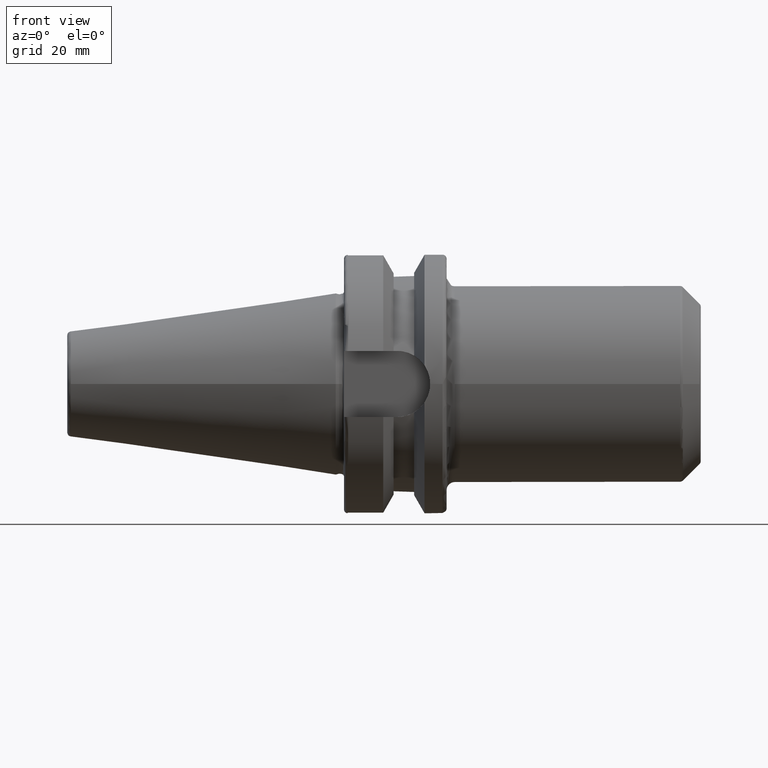
[diagram: clean part render]
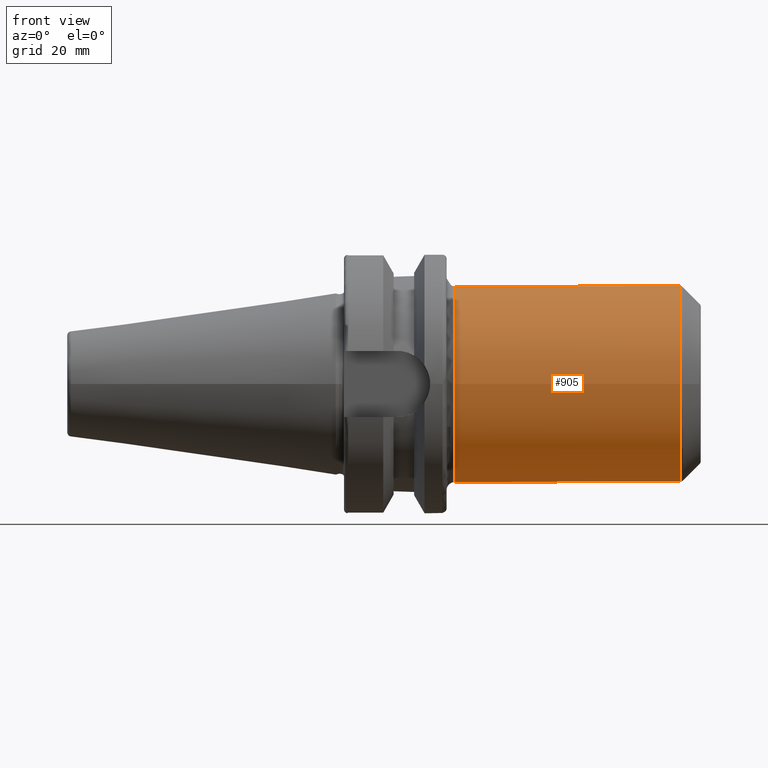
[diagram: same view with one face highlighted and labeled with its STEP entity id]
A machine part, front view. The second image highlights one B-rep face of the part: STEP entity #905.
In plain terms, the highlighted cylindrical surface (bore or boss wall) has radius 23.876 mm, axis along (1, 0, 0).
Its self-contained STEP definition (entity closure, byte-faithful):
#34=B_SPLINE_CURVE_WITH_KNOTS('',3,(#1491,#1492,#1493,#1494,#1495,#1496,
#1497,#1498,#1499,#1500,#1501,#1502,#1503,#1504,#1505,#1506,#1507,#1508,
#1509,#1510,#1511,#1512,#1513,#1514,#1515,#1516,#1517,#1518,#1519,#1520,
#1521,#1522,#1523,#1524),.UNSPECIFIED.,.T.,.F.,(4,1,1,1,1,1,1,1,1,1,1,1,
1,1,1,1,1,1,1,1,1,1,1,1,1,1,1,1,1,1,1,4),(-7.54505175732576,-7.38951290832695,
-7.27285877157784,-7.23397405932813,-6.92289636133051,-6.7673575123317,
-6.61181866333288,-6.49516452658377,-6.45627981433407,-6.30074096533526,
-5.98966326733763,-5.93133619896308,-5.91189384283823,-5.67858556934001,
-5.5748930033408,-5.5360082910911,-5.47120043734159,-5.26381530534317,-5.05643017334476,
-4.90089132434595,-4.84904504134634,-4.64165990934792,-4.43427477734951,
-4.3176206406004,-4.27873592835069,-4.12319707935188,-3.81211938135426,
-3.77323466910455,-3.65658053235544,-3.50104168335663,-3.34550283435782,
-3.18996398535901),.UNSPECIFIED.);
#35=B_SPLINE_CURVE_WITH_KNOTS('',3,(#1526,#1527,#1528,#1529,#1530,#1531,
#1532,#1533,#1534,#1535,#1536,#1537,#1538,#1539,#1540,#1541,#1542,#1543,
#1544,#1545,#1546,#1547,#1548,#1549,#1550,#1551,#1552,#1553,#1554,#1555,
#1556,#1557,#1558),.UNSPECIFIED.,.T.,.F.,(4,1,1,1,1,1,1,1,1,1,1,1,1,1,1,
1,1,1,1,1,1,1,1,1,1,1,1,1,1,1,4),(-7.54505175732576,-7.38951290832695,-7.27285877157784,
-7.23397405932813,-6.92289636133051,-6.7673575123317,-6.61181866333288,
-6.45627981433407,-6.37851038983466,-6.30074096533526,-6.06743269183704,
-5.98966326733763,-5.83412441833882,-5.67858556934001,-5.5230467203412,
-5.26381530534317,-5.21196902234357,-5.05643017334476,-4.95273760734555,
-4.84904504134634,-4.64165990934792,-4.43427477734951,-4.3176206406004,
-4.27873592835069,-4.12319707935188,-3.81211938135426,-3.77323466910455,
-3.65658053235544,-3.50104168335663,-3.34550283435782,-3.18996398535901),
 .UNSPECIFIED.);
#57=LINE('',#1486,#104);
#104=VECTOR('',#1139,23.876);
#150=CYLINDRICAL_SURFACE('',#997,23.876);
#168=FACE_BOUND('',#260,.T.);
#169=FACE_BOUND('',#261,.T.);
#201=FACE_OUTER_BOUND('',#259,.T.);
#259=EDGE_LOOP('',(#644,#645,#646,#647,#648,#649));
#260=EDGE_LOOP('',(#650));
#261=EDGE_LOOP('',(#651));
#329=CIRCLE('',#995,23.876);
#330=CIRCLE('',#996,23.876);
#331=CIRCLE('',#998,23.876);
#332=CIRCLE('',#999,23.876);
#393=VERTEX_POINT('',#1479);
#394=VERTEX_POINT('',#1481);
#395=VERTEX_POINT('',#1485);
#396=VERTEX_POINT('',#1487);
#397=VERTEX_POINT('',#1490);
#398=VERTEX_POINT('',#1525);
#490=EDGE_CURVE('',#393,#394,#329,.T.);
#491=EDGE_CURVE('',#394,#393,#330,.T.);
#492=EDGE_CURVE('',#394,#395,#57,.T.);
#493=EDGE_CURVE('',#396,#395,#331,.T.);
#494=EDGE_CURVE('',#395,#396,#332,.T.);
#495=EDGE_CURVE('',#397,#397,#34,.T.);
#496=EDGE_CURVE('',#398,#398,#35,.T.);
#644=ORIENTED_EDGE('',*,*,#491,.F.);
#645=ORIENTED_EDGE('',*,*,#492,.T.);
#646=ORIENTED_EDGE('',*,*,#493,.F.);
#647=ORIENTED_EDGE('',*,*,#494,.F.);
#648=ORIENTED_EDGE('',*,*,#492,.F.);
#649=ORIENTED_EDGE('',*,*,#490,.F.);
#650=ORIENTED_EDGE('',*,*,#495,.F.);
#651=ORIENTED_EDGE('',*,*,#496,.F.);
#905=ADVANCED_FACE('',(#201,#168,#169),#150,.T.);
#995=AXIS2_PLACEMENT_3D('',#1482,#1133,#1134);
#996=AXIS2_PLACEMENT_3D('',#1483,#1135,#1136);
#997=AXIS2_PLACEMENT_3D('',#1484,#1137,#1138);
#998=AXIS2_PLACEMENT_3D('',#1488,#1140,#1141);
#999=AXIS2_PLACEMENT_3D('',#1489,#1142,#1143);
#1133=DIRECTION('center_axis',(1.,0.,0.));
#1134=DIRECTION('ref_axis',(0.,-1.,1.83697019872103E-16));
#1135=DIRECTION('center_axis',(1.,0.,0.));
#1136=DIRECTION('ref_axis',(0.,-1.,1.83697019872103E-16));
#1137=DIRECTION('center_axis',(1.,0.,0.));
#1138=DIRECTION('ref_axis',(0.,1.,0.));
#1139=DIRECTION('',(-1.,0.,0.));
#1140=DIRECTION('center_axis',(-1.,0.,0.));
#1141=DIRECTION('ref_axis',(0.,-1.,-1.22464679914735E-16));
#1142=DIRECTION('center_axis',(-1.,0.,0.));
#1143=DIRECTION('ref_axis',(0.,-1.,-1.22464679914735E-16));
#1479=CARTESIAN_POINT('',(83.8597864376269,-2.92396669764422E-15,23.876));
#1481=CARTESIAN_POINT('',(83.8597864376269,-23.876,-2.92396669764422E-15));
#1482=CARTESIAN_POINT('Origin',(83.8597864376269,0.,0.));
#1483=CARTESIAN_POINT('Origin',(83.8597864376269,0.,0.));
#1484=CARTESIAN_POINT('Origin',(55.637,0.,0.));
#1485=CARTESIAN_POINT('',(29.,-23.876,-2.92396669764422E-15));
#1486=CARTESIAN_POINT('',(55.637,-23.876,-2.92396669764422E-15));
#1487=CARTESIAN_POINT('',(29.,-2.92396669764422E-15,-23.876));
#1488=CARTESIAN_POINT('Origin',(29.,0.,0.));
#1489=CARTESIAN_POINT('Origin',(29.,0.,0.));
#1490=CARTESIAN_POINT('',(80.5307189970663,23.8757712144025,-0.104522330202974));
#1491=CARTESIAN_POINT('Ctrl Pts',(80.5307189970663,23.8757712144025,-0.104522330202974));
#1492=CARTESIAN_POINT('Ctrl Pts',(80.4671630775008,23.8731238784633,-0.709246575139085));
#1493=CARTESIAN_POINT('Ctrl Pts',(80.2305001997715,23.8264518856932,-1.78166256185946));
#1494=CARTESIAN_POINT('Ctrl Pts',(79.7230935335096,23.7012052000015,-2.92479628382915));
#1495=CARTESIAN_POINT('Ctrl Pts',(78.7761306590817,23.4712836355892,-4.52156133416785));
#1496=CARTESIAN_POINT('Ctrl Pts',(77.4204719089247,23.1557801500652,-5.87986605472017));
#1497=CARTESIAN_POINT('Ctrl Pts',(75.1531398646933,22.8322293914921,-6.99373408717562));
#1498=CARTESIAN_POINT('Ctrl Pts',(73.4621306523717,22.7114893660771,-7.3642938368869));
#1499=CARTESIAN_POINT('Ctrl Pts',(72.2698478085041,22.7006165070543,-7.39917901722095));
#1500=CARTESIAN_POINT('Ctrl Pts',(71.0626134556931,22.7312953224682,-7.30376472081186));
#1501=CARTESIAN_POINT('Ctrl Pts',(69.0597524663478,22.8730072865718,-6.86746167169765));
#1502=CARTESIAN_POINT('Ctrl Pts',(67.2467688590518,23.2024293040662,-5.71452541041456));
#1503=CARTESIAN_POINT('Ctrl Pts',(66.2621068368119,23.4204985217379,-4.64587617084541));
#1504=CARTESIAN_POINT('Ctrl Pts',(65.4920176393231,23.5961481639434,-3.72197313480249));
#1505=CARTESIAN_POINT('Ctrl Pts',(64.7832785147101,23.7775791997382,-2.45804677671167));
#1506=CARTESIAN_POINT('Ctrl Pts',(64.397409386003,23.8605527289662,-1.00012258044439));
#1507=CARTESIAN_POINT('Ctrl Pts',(64.2704439742866,23.8779423132367,-0.187370606420771));
#1508=CARTESIAN_POINT('Ctrl Pts',(64.1741777885351,23.8738580131883,1.00477285094156));
#1509=CARTESIAN_POINT('Ctrl Pts',(64.3752389486794,23.7437380580245,2.88203210258621));
#1510=CARTESIAN_POINT('Ctrl Pts',(65.3117878474564,23.3705075713599,5.00707996120276));
#1511=CARTESIAN_POINT('Ctrl Pts',(66.3182468787275,23.0521328848673,6.23705036002413));
#1512=CARTESIAN_POINT('Ctrl Pts',(67.4525083845903,22.7457538129069,7.28720007062245));
#1513=CARTESIAN_POINT('Ctrl Pts',(69.0304996890193,22.3975686736224,8.29491065794247));
#1514=CARTESIAN_POINT('Ctrl Pts',(71.1338148449065,22.1787252614323,8.83971666769148));
#1515=CARTESIAN_POINT('Ctrl Pts',(72.5307207690929,22.1640687782425,8.87812141293553));
#1516=CARTESIAN_POINT('Ctrl Pts',(73.7394181906389,22.201621375973,8.78307149174598));
#1517=CARTESIAN_POINT('Ctrl Pts',(75.7436041042884,22.3753415753357,8.34865494780625));
#1518=CARTESIAN_POINT('Ctrl Pts',(77.4801356686177,22.7688564811005,7.24578947503825));
#1519=CARTESIAN_POINT('Ctrl Pts',(78.6767786889889,23.1140614987721,5.9967821346876));
#1520=CARTESIAN_POINT('Ctrl Pts',(79.4176529385244,23.3517946430765,5.03867521421846));
#1521=CARTESIAN_POINT('Ctrl Pts',(80.1714768655447,23.6394950295399,3.51165340661099));
#1522=CARTESIAN_POINT('Ctrl Pts',(80.5911904350025,23.8402868295304,1.67831806406501));
#1523=CARTESIAN_POINT('Ctrl Pts',(80.5942749166318,23.8784185503416,0.500201914733089));
#1524=CARTESIAN_POINT('Ctrl Pts',(80.5307189970663,23.8757712144025,-0.104522330202974));
#1525=CARTESIAN_POINT('',(59.9307189970663,23.8757712144025,-0.104522330202974));
#1526=CARTESIAN_POINT('Ctrl Pts',(59.9307189970663,23.8757712144025,-0.104522330202974));
#1527=CARTESIAN_POINT('Ctrl Pts',(59.8671630775008,23.8731238784633,-0.709246575139081));
#1528=CARTESIAN_POINT('Ctrl Pts',(59.6305310690656,23.8264563411763,-1.78163571756016));
#1529=CARTESIAN_POINT('Ctrl Pts',(59.1231232147238,23.7012156702182,-2.92475167551845));
#1530=CARTESIAN_POINT('Ctrl Pts',(58.1761224802647,23.4712741931547,-4.52155851407044));
#1531=CARTESIAN_POINT('Ctrl Pts',(56.8202902639669,23.155846564983,-5.87959637283121));
#1532=CARTESIAN_POINT('Ctrl Pts',(54.5528129283071,22.832134948775,-6.99396320282712));
#1533=CARTESIAN_POINT('Ctrl Pts',(52.7077317371733,22.7007713413237,-7.3969506804372));
#1534=CARTESIAN_POINT('Ctrl Pts',(51.2257220619433,22.6998371839503,-7.4023865541955));
#1535=CARTESIAN_POINT('Ctrl Pts',(49.9998079810977,22.7638546819163,-7.20284874877385));
#1536=CARTESIAN_POINT('Ctrl Pts',(48.4991891204858,22.8947055540956,-6.78495843347336));
#1537=CARTESIAN_POINT('Ctrl Pts',(47.1022168317759,23.1192935445103,-6.00487109992852));
#1538=CARTESIAN_POINT('Ctrl Pts',(45.7891866353824,23.3881358080514,-4.83310759886338));
#1539=CARTESIAN_POINT('Ctrl Pts',(44.8408221871035,23.6102074045255,-3.66740648909573));
#1540=CARTESIAN_POINT('Ctrl Pts',(44.0085042203139,23.8183200335089,-1.96175089639554));
#1541=CARTESIAN_POINT('Ctrl Pts',(43.5170760157892,23.9165222049529,0.269160598490635));
#1542=CARTESIAN_POINT('Ctrl Pts',(43.6521896746171,23.8120861246867,2.06472028392251));
#1543=CARTESIAN_POINT('Ctrl Pts',(44.1996725560656,23.5743379317445,3.851790874883));
#1544=CARTESIAN_POINT('Ctrl Pts',(44.7438374076648,23.3667699447773,4.96306293439012));
#1545=CARTESIAN_POINT('Ctrl Pts',(45.5923341367588,23.0911039984209,6.09359976558267));
#1546=CARTESIAN_POINT('Ctrl Pts',(46.6795135841764,22.7844476745889,7.17304325323145));
#1547=CARTESIAN_POINT('Ctrl Pts',(48.4276769572369,22.3976378333923,8.29448917061761));
#1548=CARTESIAN_POINT('Ctrl Pts',(50.5336193300057,22.1785109242389,8.84016629179552));
#1549=CARTESIAN_POINT('Ctrl Pts',(51.9307493199231,22.1641206521623,8.87815685490341));
#1550=CARTESIAN_POINT('Ctrl Pts',(53.1393897755427,22.201600444129,8.78318231551446));
#1551=CARTESIAN_POINT('Ctrl Pts',(55.1437028157558,22.3753788759671,8.3486587097041));
#1552=CARTESIAN_POINT('Ctrl Pts',(56.8801383565006,22.7688508334283,7.2458360775241));
#1553=CARTESIAN_POINT('Ctrl Pts',(58.076744798317,23.1140574177598,5.99681523823869));
#1554=CARTESIAN_POINT('Ctrl Pts',(58.8176111470064,23.3517857018594,5.03872361624711));
#1555=CARTESIAN_POINT('Ctrl Pts',(59.5714371883782,23.6394867621559,3.51170742737077));
#1556=CARTESIAN_POINT('Ctrl Pts',(59.9911515385124,23.8402755816169,1.67840966921882));
#1557=CARTESIAN_POINT('Ctrl Pts',(59.9942749166318,23.8784185503416,0.500201914733106));
#1558=CARTESIAN_POINT('Ctrl Pts',(59.9307189970663,23.8757712144025,-0.104522330202976));